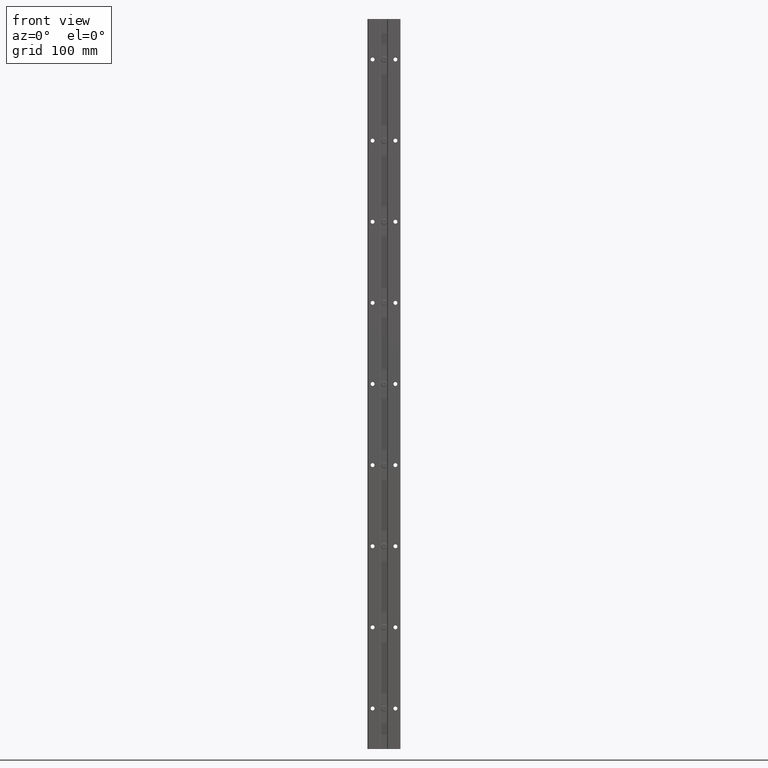
[diagram: clean part render]
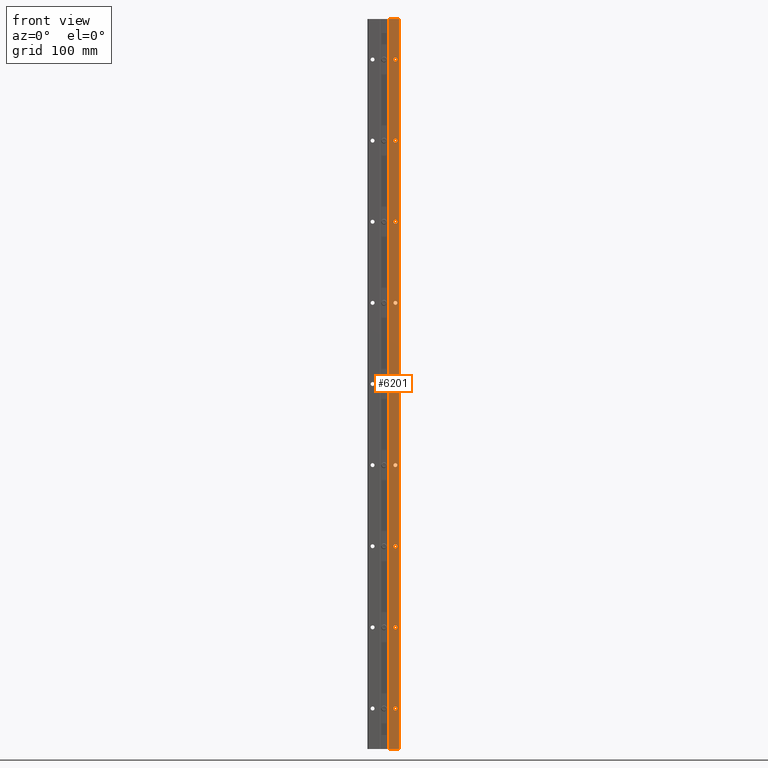
[diagram: same view with one face highlighted and labeled with its STEP entity id]
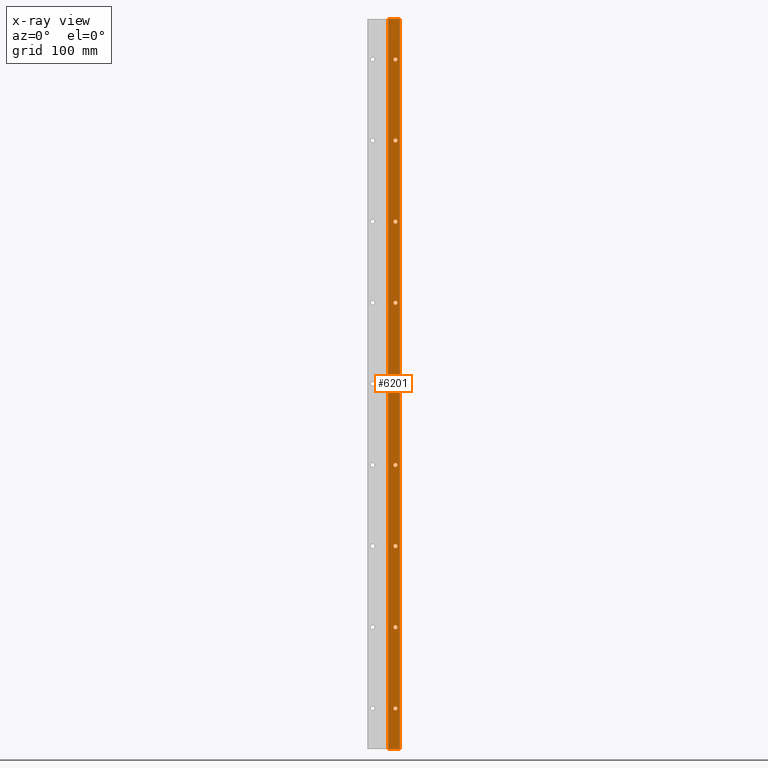
[diagram: x-ray of the same camera — body ghosted, the highlighted face saturated]
A machine part, front view. The second image highlights one B-rep face of the part: STEP entity #6201.
The next image is the same camera in x-ray: the body ghosted, the highlighted face saturated — about 0% of this face is hidden behind the body in this view.
In plain terms, the highlighted planar face has unit normal (0, 1, 0).
Its self-contained STEP definition (entity closure, byte-faithful):
#123 = VERTEX_POINT ( 'NONE', #4106 ) ;
#270 = EDGE_CURVE ( 'NONE', #11074, #3703, #11292, .T. ) ;
#303 = EDGE_CURVE ( 'NONE', #9216, #3704, #7581, .T. ) ;
#389 = ORIENTED_EDGE ( 'NONE', *, *, #1477, .T. ) ;
#424 = CARTESIAN_POINT ( 'NONE',  ( 0.5625000000000001110, 0.000000000000000000, -6.096999999999998643 ) ) ;
#483 = FACE_BOUND ( 'NONE', #4526, .T. ) ;
#517 = VERTEX_POINT ( 'NONE', #11127 ) ;
#568 = EDGE_CURVE ( 'NONE', #2775, #6464, #11831, .T. ) ;
#585 = AXIS2_PLACEMENT_3D ( 'NONE', #2586, #1390, #6433 ) ;
#644 = CARTESIAN_POINT ( 'NONE',  ( 0.5625000000000001110, 0.000000000000000000, -14.00000000000000000 ) ) ;
#674 = AXIS2_PLACEMENT_3D ( 'NONE', #8025, #6118, #5139 ) ;
#696 = DIRECTION ( 'NONE',  ( 0.000000000000000000, 1.000000000000000000, 0.000000000000000000 ) ) ;
#716 = FACE_BOUND ( 'NONE', #4359, .T. ) ;
#740 = DIRECTION ( 'NONE',  ( 1.000000000000000000, 0.000000000000000000, 0.000000000000000000 ) ) ;
#782 = AXIS2_PLACEMENT_3D ( 'NONE', #644, #8953, #2572 ) ;
#856 = CARTESIAN_POINT ( 'NONE',  ( 0.5625000000000001110, 0.000000000000000000, -34.00000000000000000 ) ) ;
#897 = ORIENTED_EDGE ( 'NONE', *, *, #9172, .T. ) ;
#906 = CIRCLE ( 'NONE', #7721, 0.09699999999999980860 ) ;
#961 = CIRCLE ( 'NONE', #9540, 0.09700000000000062739 ) ;
#1334 = CARTESIAN_POINT ( 'NONE',  ( 0.5625000000000001110, 0.000000000000000000, -29.90299999999999514 ) ) ;
#1349 = EDGE_CURVE ( 'NONE', #123, #2268, #4863, .T. ) ;
#1390 = DIRECTION ( 'NONE',  ( 0.000000000000000000, 1.000000000000000000, 0.000000000000000000 ) ) ;
#1419 = DIRECTION ( 'NONE',  ( 0.000000000000000000, 1.000000000000000000, 0.000000000000000000 ) ) ;
#1422 = DIRECTION ( 'NONE',  ( 0.000000000000000000, 1.000000000000000000, 0.000000000000000000 ) ) ;
#1447 = PLANE ( 'NONE',  #585 ) ;
#1462 = CIRCLE ( 'NONE', #10240, 0.09700000000000062739 ) ;
#1477 = EDGE_CURVE ( 'NONE', #517, #3129, #11959, .T. ) ;
#1668 = VERTEX_POINT ( 'NONE', #5681 ) ;
#1687 = EDGE_LOOP ( 'NONE', ( #4783, #7375, #4064, #3367 ) ) ;
#1769 = VERTEX_POINT ( 'NONE', #7019 ) ;
#1798 = ORIENTED_EDGE ( 'NONE', *, *, #270, .T. ) ;
#1803 = VECTOR ( 'NONE', #2887, 39.37007874015748143 ) ;
#1919 = EDGE_LOOP ( 'NONE', ( #10919, #12040 ) ) ;
#1923 = AXIS2_PLACEMENT_3D ( 'NONE', #4314, #11850, #2499 ) ;
#1928 = VERTEX_POINT ( 'NONE', #7077 ) ;
#1961 = CARTESIAN_POINT ( 'NONE',  ( 0.5625000000000001110, 0.000000000000000000, -17.90299999999999869 ) ) ;
#2156 = EDGE_CURVE ( 'NONE', #6464, #2775, #3234, .T. ) ;
#2268 = VERTEX_POINT ( 'NONE', #4448 ) ;
#2277 = CARTESIAN_POINT ( 'NONE',  ( 0.5625000000000001110, 0.000000000000000000, -18.09700000000000131 ) ) ;
#2328 = DIRECTION ( 'NONE',  ( 0.000000000000000000, 0.000000000000000000, 1.000000000000000000 ) ) ;
#2337 = DIRECTION ( 'NONE',  ( 0.000000000000000000, 0.000000000000000000, 1.000000000000000000 ) ) ;
#2339 = CARTESIAN_POINT ( 'NONE',  ( 0.5625000000000001110, 0.000000000000000000, -2.000000000000000000 ) ) ;
#2382 = DIRECTION ( 'NONE',  ( 0.000000000000000000, 0.000000000000000000, 1.000000000000000000 ) ) ;
#2426 = LINE ( 'NONE', #11898, #2448 ) ;
#2448 = VECTOR ( 'NONE', #740, 39.37007874015748143 ) ;
#2450 = ORIENTED_EDGE ( 'NONE', *, *, #4790, .T. ) ;
#2499 = DIRECTION ( 'NONE',  ( 0.000000000000000000, 0.000000000000000000, 1.000000000000000000 ) ) ;
#2518 = DIRECTION ( 'NONE',  ( 0.000000000000000000, 1.000000000000000000, 0.000000000000000000 ) ) ;
#2542 = ORIENTED_EDGE ( 'NONE', *, *, #303, .T. ) ;
#2572 = DIRECTION ( 'NONE',  ( 0.000000000000000000, 0.000000000000000000, 1.000000000000000000 ) ) ;
#2586 = CARTESIAN_POINT ( 'NONE',  ( -2.500000000000000000, 0.000000000000000000, 0.1250000000000000000 ) ) ;
#2693 = VERTEX_POINT ( 'NONE', #8470 ) ;
#2775 = VERTEX_POINT ( 'NONE', #2778 ) ;
#2778 = CARTESIAN_POINT ( 'NONE',  ( 0.5625000000000001110, 0.000000000000000000, -21.90299999999999869 ) ) ;
#2887 = DIRECTION ( 'NONE',  ( -1.000000000000000000, 0.000000000000000000, 0.000000000000000000 ) ) ;
#2989 = CARTESIAN_POINT ( 'NONE',  ( 0.5625000000000001110, 0.000000000000000000, -25.99999999999999645 ) ) ;
#3052 = CARTESIAN_POINT ( 'NONE',  ( 0.5625000000000001110, 0.000000000000000000, -13.90299999999999869 ) ) ;
#3059 = CARTESIAN_POINT ( 'NONE',  ( 0.5625000000000001110, 0.000000000000000000, -22.09700000000000131 ) ) ;
#3111 = DIRECTION ( 'NONE',  ( 0.000000000000000000, 1.000000000000000000, 0.000000000000000000 ) ) ;
#3129 = VERTEX_POINT ( 'NONE', #11699 ) ;
#3226 = AXIS2_PLACEMENT_3D ( 'NONE', #11727, #3344, #7074 ) ;
#3234 = CIRCLE ( 'NONE', #4796, 0.09700000000000062739 ) ;
#3338 = CARTESIAN_POINT ( 'NONE',  ( 0.2044203811574923924, -5.805176986536559586E-16, -37.83356500330708627 ) ) ;
#3344 = DIRECTION ( 'NONE',  ( 0.000000000000000000, 1.000000000000000000, 0.000000000000000000 ) ) ;
#3367 = ORIENTED_EDGE ( 'NONE', *, *, #4172, .T. ) ;
#3406 = CIRCLE ( 'NONE', #9104, 0.09700000000000062739 ) ;
#3549 = FACE_BOUND ( 'NONE', #8630, .T. ) ;
#3599 = AXIS2_PLACEMENT_3D ( 'NONE', #8075, #696, #9794 ) ;
#3628 = CIRCLE ( 'NONE', #11248, 0.09699999999999954492 ) ;
#3642 = EDGE_CURVE ( 'NONE', #10661, #10724, #6762, .T. ) ;
#3650 = ORIENTED_EDGE ( 'NONE', *, *, #568, .T. ) ;
#3703 = VERTEX_POINT ( 'NONE', #3052 ) ;
#3704 = VERTEX_POINT ( 'NONE', #1961 ) ;
#3794 = EDGE_CURVE ( 'NONE', #7955, #6188, #3628, .T. ) ;
#3821 = CIRCLE ( 'NONE', #3226, 0.09699999999999954492 ) ;
#3826 = VECTOR ( 'NONE', #2382, 39.37007874015748143 ) ;
#3928 = ORIENTED_EDGE ( 'NONE', *, *, #8039, .T. ) ;
#3952 = CARTESIAN_POINT ( 'NONE',  ( 0.5625000000000001110, 0.000000000000000000, -5.902999999999999581 ) ) ;
#3977 = VERTEX_POINT ( 'NONE', #5446 ) ;
#4064 = ORIENTED_EDGE ( 'NONE', *, *, #4726, .F. ) ;
#4106 = CARTESIAN_POINT ( 'NONE',  ( 0.5625000000000001110, 0.000000000000000000, -1.903000000000000247 ) ) ;
#4127 = LINE ( 'NONE', #3338, #5347 ) ;
#4172 = EDGE_CURVE ( 'NONE', #2693, #1769, #11789, .T. ) ;
#4217 = AXIS2_PLACEMENT_3D ( 'NONE', #2989, #3111, #6839 ) ;
#4242 = ORIENTED_EDGE ( 'NONE', *, *, #10560, .T. ) ;
#4285 = DIRECTION ( 'NONE',  ( 0.000000000000000000, 0.000000000000000000, 1.000000000000000000 ) ) ;
#4314 = CARTESIAN_POINT ( 'NONE',  ( 0.5625000000000001110, 0.000000000000000000, -14.00000000000000000 ) ) ;
#4333 = CARTESIAN_POINT ( 'NONE',  ( 0.5625000000000001110, 0.000000000000000000, -18.00000000000000000 ) ) ;
#4337 = CARTESIAN_POINT ( 'NONE',  ( 0.5625000000000001110, 0.000000000000000000, -5.999999999999999112 ) ) ;
#4359 = EDGE_LOOP ( 'NONE', ( #389, #11055 ) ) ;
#4448 = CARTESIAN_POINT ( 'NONE',  ( 0.5625000000000001110, 0.000000000000000000, -2.096999999999999975 ) ) ;
#4473 = FACE_BOUND ( 'NONE', #6192, .T. ) ;
#4526 = EDGE_LOOP ( 'NONE', ( #8789, #3650 ) ) ;
#4726 = EDGE_CURVE ( 'NONE', #2693, #8818, #10177, .T. ) ;
#4783 = ORIENTED_EDGE ( 'NONE', *, *, #8464, .F. ) ;
#4790 = EDGE_CURVE ( 'NONE', #11469, #7237, #8243, .T. ) ;
#4796 = AXIS2_PLACEMENT_3D ( 'NONE', #8013, #7954, #2328 ) ;
#4863 = CIRCLE ( 'NONE', #10144, 0.09699999999999980860 ) ;
#4960 = CARTESIAN_POINT ( 'NONE',  ( 0.5625000000000001110, 0.000000000000000000, -29.99999999999999645 ) ) ;
#5139 = DIRECTION ( 'NONE',  ( 0.000000000000000000, 0.000000000000000000, 1.000000000000000000 ) ) ;
#5140 = DIRECTION ( 'NONE',  ( 0.000000000000000000, 1.000000000000000000, 0.000000000000000000 ) ) ;
#5203 = CARTESIAN_POINT ( 'NONE',  ( 0.5625000000000001110, 0.000000000000000000, -18.00000000000000000 ) ) ;
#5347 = VECTOR ( 'NONE', #7870, 39.37007874015748143 ) ;
#5446 = CARTESIAN_POINT ( 'NONE',  ( 0.5625000000000001110, 0.000000000000000000, -10.09700000000000131 ) ) ;
#5518 = CARTESIAN_POINT ( 'NONE',  ( 0.2044203811574923924, -5.805176986536559586E-16, -36.00000000000000000 ) ) ;
#5681 = CARTESIAN_POINT ( 'NONE',  ( 0.2044203811574871466, 6.146657985744592735E-16, 0.000000000000000000 ) ) ;
#5918 = DIRECTION ( 'NONE',  ( 0.000000000000000000, 1.000000000000000000, 0.000000000000000000 ) ) ;
#5953 = CIRCLE ( 'NONE', #6338, 0.09700000000000062739 ) ;
#6004 = ORIENTED_EDGE ( 'NONE', *, *, #11582, .T. ) ;
#6030 = FACE_BOUND ( 'NONE', #6085, .T. ) ;
#6085 = EDGE_LOOP ( 'NONE', ( #6004, #8594 ) ) ;
#6118 = DIRECTION ( 'NONE',  ( 0.000000000000000000, 1.000000000000000000, 0.000000000000000000 ) ) ;
#6188 = VERTEX_POINT ( 'NONE', #424 ) ;
#6192 = EDGE_LOOP ( 'NONE', ( #2542, #897 ) ) ;
#6201 = ADVANCED_FACE ( 'NONE', ( #8921, #4473, #11590, #6030, #9146, #716, #483, #8218, #3549, #9204 ), #1447, .F. ) ;
#6237 = EDGE_LOOP ( 'NONE', ( #1798, #10476 ) ) ;
#6282 = CARTESIAN_POINT ( 'NONE',  ( 0.7630796188424994186, -5.805176986536559586E-16, -37.83356500330708627 ) ) ;
#6327 = DIRECTION ( 'NONE',  ( 0.000000000000000000, 0.000000000000000000, 1.000000000000000000 ) ) ;
#6338 = AXIS2_PLACEMENT_3D ( 'NONE', #11059, #6413, #10155 ) ;
#6361 = AXIS2_PLACEMENT_3D ( 'NONE', #6777, #5918, #7698 ) ;
#6413 = DIRECTION ( 'NONE',  ( 0.000000000000000000, 1.000000000000000000, 0.000000000000000000 ) ) ;
#6433 = DIRECTION ( 'NONE',  ( 0.000000000000000000, -0.000000000000000000, 1.000000000000000000 ) ) ;
#6453 = DIRECTION ( 'NONE',  ( 0.000000000000000000, 1.000000000000000000, 0.000000000000000000 ) ) ;
#6464 = VERTEX_POINT ( 'NONE', #3059 ) ;
#6467 = AXIS2_PLACEMENT_3D ( 'NONE', #4960, #11455, #10477 ) ;
#6554 = DIRECTION ( 'NONE',  ( 0.000000000000000000, 0.000000000000000000, 1.000000000000000000 ) ) ;
#6762 = CIRCLE ( 'NONE', #4217, 0.09700000000000062739 ) ;
#6777 = CARTESIAN_POINT ( 'NONE',  ( 0.5625000000000001110, 0.000000000000000000, -22.00000000000000000 ) ) ;
#6839 = DIRECTION ( 'NONE',  ( 0.000000000000000000, 0.000000000000000000, 1.000000000000000000 ) ) ;
#7019 = CARTESIAN_POINT ( 'NONE',  ( 0.7630796188424994186, 0.000000000000000000, 0.000000000000000000 ) ) ;
#7038 = EDGE_CURVE ( 'NONE', #3703, #11074, #12074, .T. ) ;
#7062 = CARTESIAN_POINT ( 'NONE',  ( 0.5625000000000001110, 0.000000000000000000, -29.99999999999999645 ) ) ;
#7074 = DIRECTION ( 'NONE',  ( 0.000000000000000000, 0.000000000000000000, 1.000000000000000000 ) ) ;
#7077 = CARTESIAN_POINT ( 'NONE',  ( 0.5625000000000001110, 0.000000000000000000, -9.903000000000000469 ) ) ;
#7089 = EDGE_CURVE ( 'NONE', #3129, #517, #961, .T. ) ;
#7126 = CARTESIAN_POINT ( 'NONE',  ( 0.5625000000000001110, 0.000000000000000000, -10.00000000000000000 ) ) ;
#7237 = VERTEX_POINT ( 'NONE', #1334 ) ;
#7338 = ORIENTED_EDGE ( 'NONE', *, *, #8495, .T. ) ;
#7375 = ORIENTED_EDGE ( 'NONE', *, *, #11230, .F. ) ;
#7581 = CIRCLE ( 'NONE', #8765, 0.09700000000000062739 ) ;
#7698 = DIRECTION ( 'NONE',  ( 0.000000000000000000, 0.000000000000000000, 1.000000000000000000 ) ) ;
#7721 = AXIS2_PLACEMENT_3D ( 'NONE', #2339, #5140, #8888 ) ;
#7870 = DIRECTION ( 'NONE',  ( 0.000000000000000000, 0.000000000000000000, 1.000000000000000000 ) ) ;
#7954 = DIRECTION ( 'NONE',  ( 0.000000000000000000, 1.000000000000000000, 0.000000000000000000 ) ) ;
#7955 = VERTEX_POINT ( 'NONE', #3952 ) ;
#8013 = CARTESIAN_POINT ( 'NONE',  ( 0.5625000000000001110, 0.000000000000000000, -22.00000000000000000 ) ) ;
#8025 = CARTESIAN_POINT ( 'NONE',  ( 0.5625000000000001110, 0.000000000000000000, -34.00000000000000000 ) ) ;
#8039 = EDGE_CURVE ( 'NONE', #6188, #7955, #3821, .T. ) ;
#8075 = CARTESIAN_POINT ( 'NONE',  ( 0.5625000000000001110, 0.000000000000000000, -10.00000000000000000 ) ) ;
#8218 = FACE_BOUND ( 'NONE', #1919, .T. ) ;
#8243 = CIRCLE ( 'NONE', #6467, 0.09700000000000062739 ) ;
#8464 = EDGE_CURVE ( 'NONE', #1668, #1769, #2426, .T. ) ;
#8470 = CARTESIAN_POINT ( 'NONE',  ( 0.7630796188424994186, -5.805176986536559586E-16, -36.00000000000000000 ) ) ;
#8495 = EDGE_CURVE ( 'NONE', #7237, #11469, #9286, .T. ) ;
#8514 = CARTESIAN_POINT ( 'NONE',  ( 0.5625000000000001110, 0.000000000000000000, -30.09699999999999775 ) ) ;
#8594 = ORIENTED_EDGE ( 'NONE', *, *, #9646, .T. ) ;
#8630 = EDGE_LOOP ( 'NONE', ( #4242, #11458 ) ) ;
#8723 = CARTESIAN_POINT ( 'NONE',  ( 0.2044203811574923924, -5.751820580410304252E-16, -36.00000000000000000 ) ) ;
#8765 = AXIS2_PLACEMENT_3D ( 'NONE', #4333, #2518, #10031 ) ;
#8789 = ORIENTED_EDGE ( 'NONE', *, *, #2156, .T. ) ;
#8818 = VERTEX_POINT ( 'NONE', #8723 ) ;
#8888 = DIRECTION ( 'NONE',  ( 0.000000000000000000, 0.000000000000000000, 1.000000000000000000 ) ) ;
#8921 = FACE_BOUND ( 'NONE', #6237, .T. ) ;
#8926 = DIRECTION ( 'NONE',  ( 0.000000000000000000, 0.000000000000000000, 1.000000000000000000 ) ) ;
#8953 = DIRECTION ( 'NONE',  ( 0.000000000000000000, 1.000000000000000000, 0.000000000000000000 ) ) ;
#9040 = DIRECTION ( 'NONE',  ( 0.000000000000000000, 1.000000000000000000, 0.000000000000000000 ) ) ;
#9094 = AXIS2_PLACEMENT_3D ( 'NONE', #7062, #9896, #6327 ) ;
#9104 = AXIS2_PLACEMENT_3D ( 'NONE', #5203, #1419, #2337 ) ;
#9146 = FACE_BOUND ( 'NONE', #10062, .T. ) ;
#9172 = EDGE_CURVE ( 'NONE', #3704, #9216, #3406, .T. ) ;
#9204 = FACE_OUTER_BOUND ( 'NONE', #1687, .T. ) ;
#9216 = VERTEX_POINT ( 'NONE', #2277 ) ;
#9286 = CIRCLE ( 'NONE', #9094, 0.09700000000000062739 ) ;
#9540 = AXIS2_PLACEMENT_3D ( 'NONE', #856, #6453, #11964 ) ;
#9646 = EDGE_CURVE ( 'NONE', #1928, #3977, #1462, .T. ) ;
#9661 = CARTESIAN_POINT ( 'NONE',  ( 0.5625000000000001110, 0.000000000000000000, -25.90299999999999514 ) ) ;
#9670 = CIRCLE ( 'NONE', #3599, 0.09700000000000062739 ) ;
#9794 = DIRECTION ( 'NONE',  ( 0.000000000000000000, 0.000000000000000000, 1.000000000000000000 ) ) ;
#9896 = DIRECTION ( 'NONE',  ( 0.000000000000000000, 1.000000000000000000, 0.000000000000000000 ) ) ;
#10031 = DIRECTION ( 'NONE',  ( 0.000000000000000000, 0.000000000000000000, 1.000000000000000000 ) ) ;
#10062 = EDGE_LOOP ( 'NONE', ( #2450, #7338 ) ) ;
#10144 = AXIS2_PLACEMENT_3D ( 'NONE', #11265, #10354, #6554 ) ;
#10146 = CARTESIAN_POINT ( 'NONE',  ( 0.5625000000000001110, 0.000000000000000000, -14.09699999999999953 ) ) ;
#10155 = DIRECTION ( 'NONE',  ( 0.000000000000000000, 0.000000000000000000, 1.000000000000000000 ) ) ;
#10177 = LINE ( 'NONE', #5518, #1803 ) ;
#10240 = AXIS2_PLACEMENT_3D ( 'NONE', #7126, #9040, #8926 ) ;
#10283 = CARTESIAN_POINT ( 'NONE',  ( 0.5625000000000001110, 0.000000000000000000, -26.09699999999999775 ) ) ;
#10354 = DIRECTION ( 'NONE',  ( 0.000000000000000000, 1.000000000000000000, 0.000000000000000000 ) ) ;
#10476 = ORIENTED_EDGE ( 'NONE', *, *, #7038, .T. ) ;
#10477 = DIRECTION ( 'NONE',  ( 0.000000000000000000, 0.000000000000000000, 1.000000000000000000 ) ) ;
#10560 = EDGE_CURVE ( 'NONE', #2268, #123, #906, .T. ) ;
#10577 = EDGE_LOOP ( 'NONE', ( #3928, #11324 ) ) ;
#10661 = VERTEX_POINT ( 'NONE', #10283 ) ;
#10724 = VERTEX_POINT ( 'NONE', #9661 ) ;
#10919 = ORIENTED_EDGE ( 'NONE', *, *, #3642, .T. ) ;
#11055 = ORIENTED_EDGE ( 'NONE', *, *, #7089, .T. ) ;
#11059 = CARTESIAN_POINT ( 'NONE',  ( 0.5625000000000001110, 0.000000000000000000, -25.99999999999999645 ) ) ;
#11074 = VERTEX_POINT ( 'NONE', #10146 ) ;
#11127 = CARTESIAN_POINT ( 'NONE',  ( 0.5625000000000001110, 0.000000000000000000, -34.09700000000000131 ) ) ;
#11230 = EDGE_CURVE ( 'NONE', #8818, #1668, #4127, .T. ) ;
#11248 = AXIS2_PLACEMENT_3D ( 'NONE', #4337, #1422, #4285 ) ;
#11265 = CARTESIAN_POINT ( 'NONE',  ( 0.5625000000000001110, 0.000000000000000000, -2.000000000000000000 ) ) ;
#11292 = CIRCLE ( 'NONE', #782, 0.09700000000000062739 ) ;
#11324 = ORIENTED_EDGE ( 'NONE', *, *, #3794, .T. ) ;
#11455 = DIRECTION ( 'NONE',  ( 0.000000000000000000, 1.000000000000000000, 0.000000000000000000 ) ) ;
#11458 = ORIENTED_EDGE ( 'NONE', *, *, #1349, .T. ) ;
#11469 = VERTEX_POINT ( 'NONE', #8514 ) ;
#11582 = EDGE_CURVE ( 'NONE', #3977, #1928, #9670, .T. ) ;
#11590 = FACE_BOUND ( 'NONE', #10577, .T. ) ;
#11699 = CARTESIAN_POINT ( 'NONE',  ( 0.5625000000000001110, 0.000000000000000000, -33.90299999999999869 ) ) ;
#11727 = CARTESIAN_POINT ( 'NONE',  ( 0.5625000000000001110, 0.000000000000000000, -5.999999999999999112 ) ) ;
#11766 = EDGE_CURVE ( 'NONE', #10724, #10661, #5953, .T. ) ;
#11789 = LINE ( 'NONE', #6282, #3826 ) ;
#11831 = CIRCLE ( 'NONE', #6361, 0.09700000000000062739 ) ;
#11850 = DIRECTION ( 'NONE',  ( 0.000000000000000000, 1.000000000000000000, 0.000000000000000000 ) ) ;
#11898 = CARTESIAN_POINT ( 'NONE',  ( -2.500000000000000000, 0.000000000000000000, 0.000000000000000000 ) ) ;
#11959 = CIRCLE ( 'NONE', #674, 0.09700000000000062739 ) ;
#11964 = DIRECTION ( 'NONE',  ( 0.000000000000000000, 0.000000000000000000, 1.000000000000000000 ) ) ;
#12040 = ORIENTED_EDGE ( 'NONE', *, *, #11766, .T. ) ;
#12074 = CIRCLE ( 'NONE', #1923, 0.09700000000000062739 ) ;